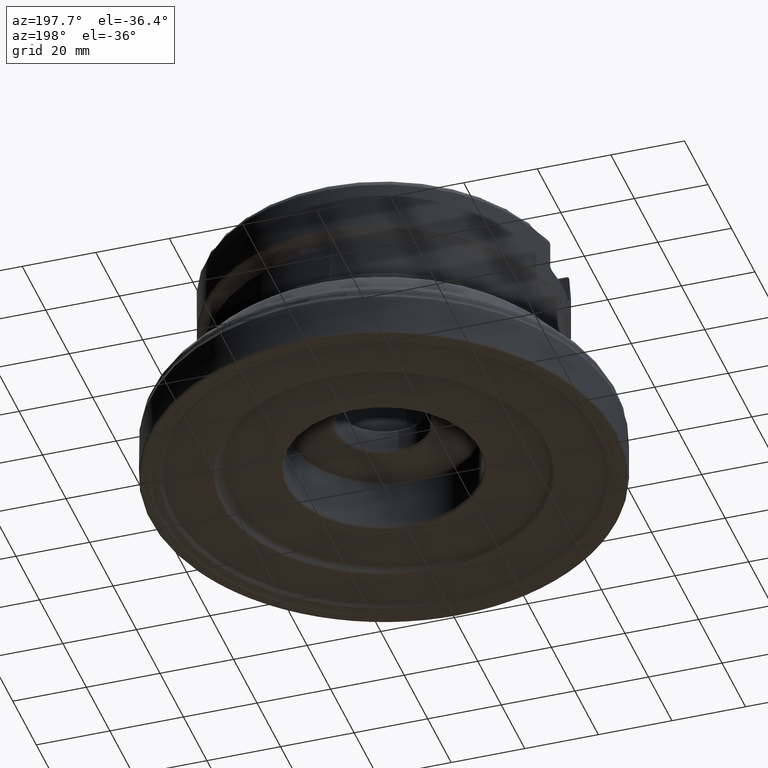
[diagram: clean part render]
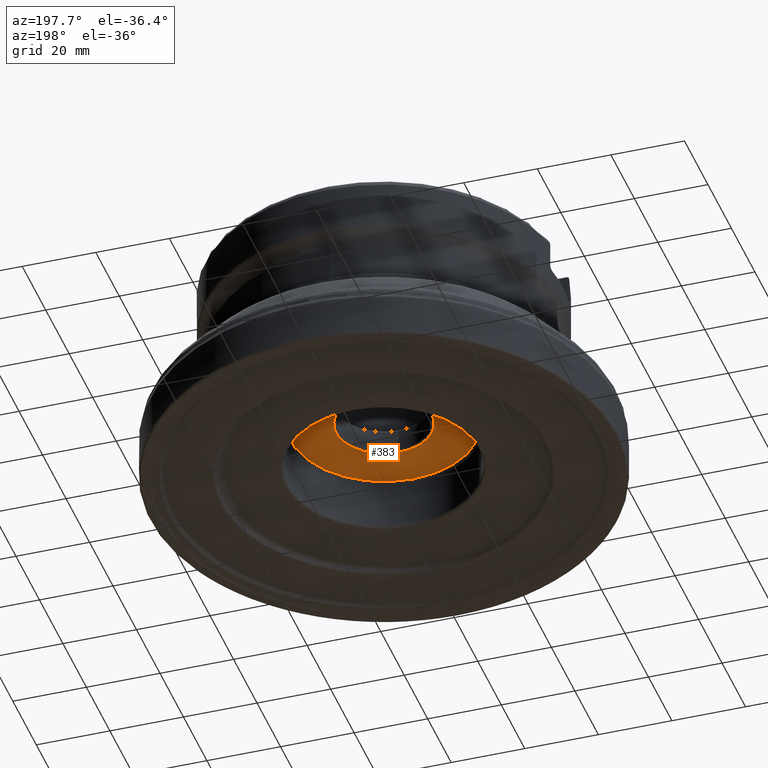
[diagram: same view with one face highlighted and labeled with its STEP entity id]
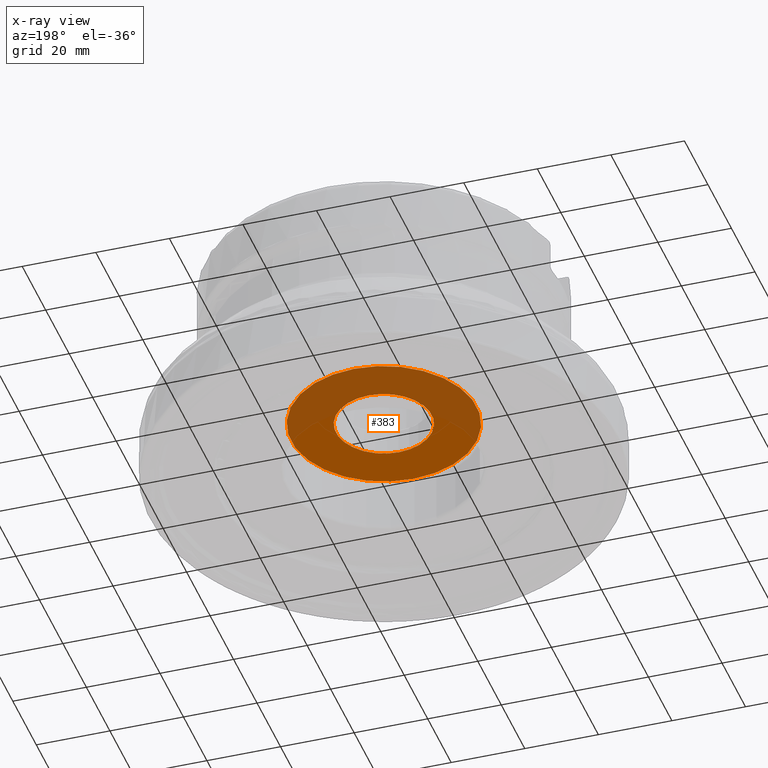
[diagram: x-ray of the same camera — body ghosted, the highlighted face saturated]
A machine part, auxiliary view. The second image highlights one B-rep face of the part: STEP entity #383.
The next image is the same camera in x-ray: the body ghosted, the highlighted face saturated — about 52% of this face is hidden behind the body in this view.
In plain terms, the highlighted planar face has unit normal (0, 0, 1).
Its self-contained STEP definition (entity closure, byte-faithful):
#175=PLANE('',#1269);
#276=FACE_BOUND('',#513,.T.);
#277=FACE_BOUND('',#514,.T.);
#383=ADVANCED_FACE('',(#276,#277),#175,.F.);
#513=EDGE_LOOP('',(#703));
#514=EDGE_LOOP('',(#704));
#703=ORIENTED_EDGE('',*,*,#1030,.T.);
#704=ORIENTED_EDGE('',*,*,#1031,.T.);
#921=VERTEX_POINT('',#2261);
#922=VERTEX_POINT('',#2263);
#1030=EDGE_CURVE('',#921,#921,#1113,.T.);
#1031=EDGE_CURVE('',#922,#922,#1114,.T.);
#1113=CIRCLE('',#1267,13.);
#1114=CIRCLE('',#1268,25.2);
#1267=AXIS2_PLACEMENT_3D('',#2260,#1466,#1467);
#1268=AXIS2_PLACEMENT_3D('',#2262,#1468,#1469);
#1269=AXIS2_PLACEMENT_3D('',#2264,#1470,#1471);
#1466=DIRECTION('',(1.17145536458252E-15,1.17145536458252E-15,1.));
#1467=DIRECTION('',(0.,1.,-1.06752213906265E-15));
#1468=DIRECTION('',(-1.17145536458252E-15,-1.17145536458252E-15,-1.));
#1469=DIRECTION('',(0.,1.,-1.23908819712629E-15));
#1470=DIRECTION('',(1.17145536458252E-15,1.17145536458252E-15,1.));
#1471=DIRECTION('',(0.,1.,-1.17267306976032E-15));
#2260=CARTESIAN_POINT('',(2.03050701253818E-14,2.03050701253818E-14,17.3332));
#2261=CARTESIAN_POINT('',(2.03050701253818E-14,13.,17.3332));
#2262=CARTESIAN_POINT('',(2.03050701253818E-14,2.03050701253818E-14,17.3332));
#2263=CARTESIAN_POINT('',(2.03050701253818E-14,25.2,17.3332));
#2264=CARTESIAN_POINT('',(26.,2.03050701253818E-14,17.3332));